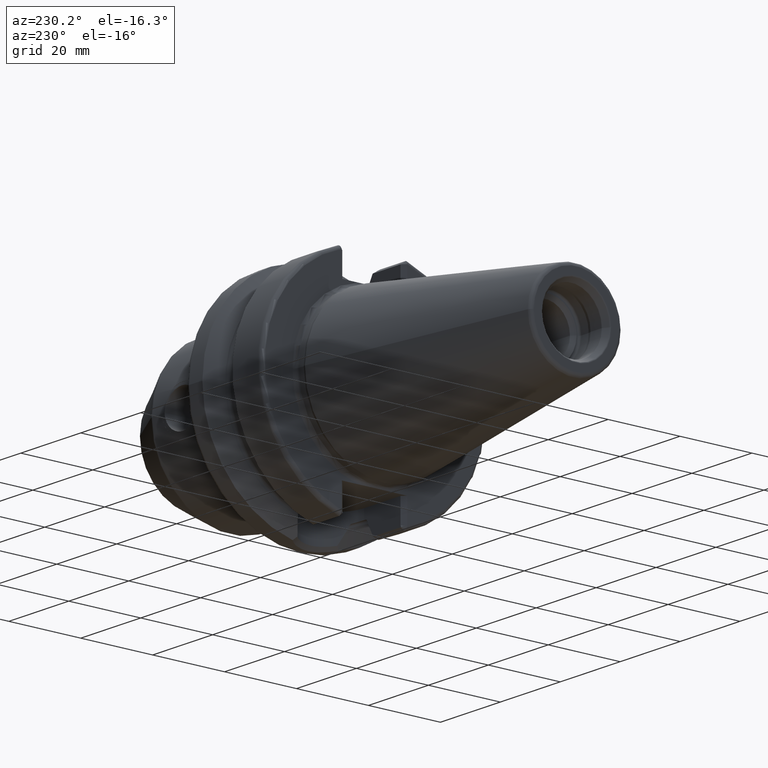
[diagram: clean part render]
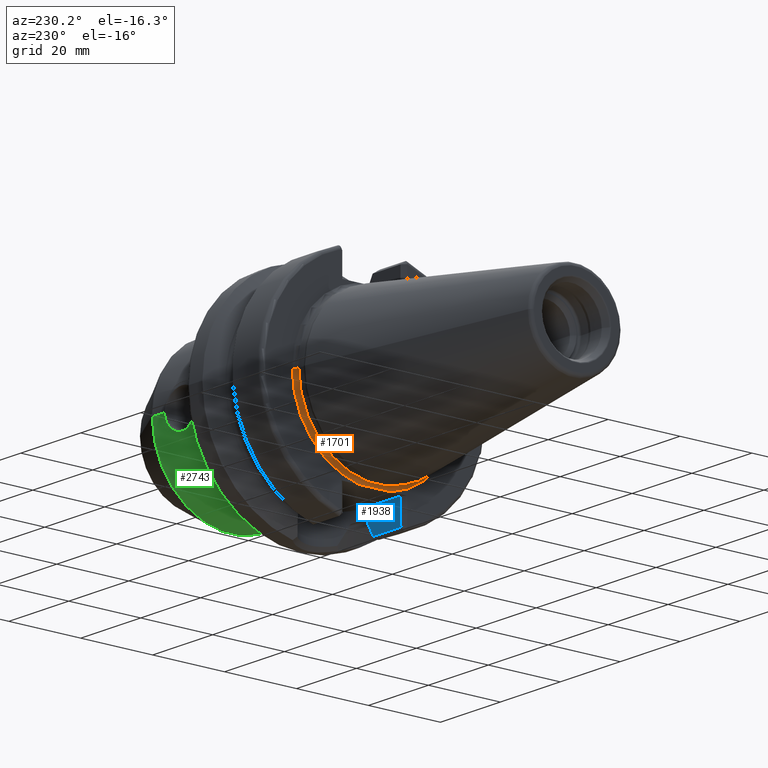
[diagram: same view with three faces highlighted in distinct colors, each labeled with its STEP entity id]
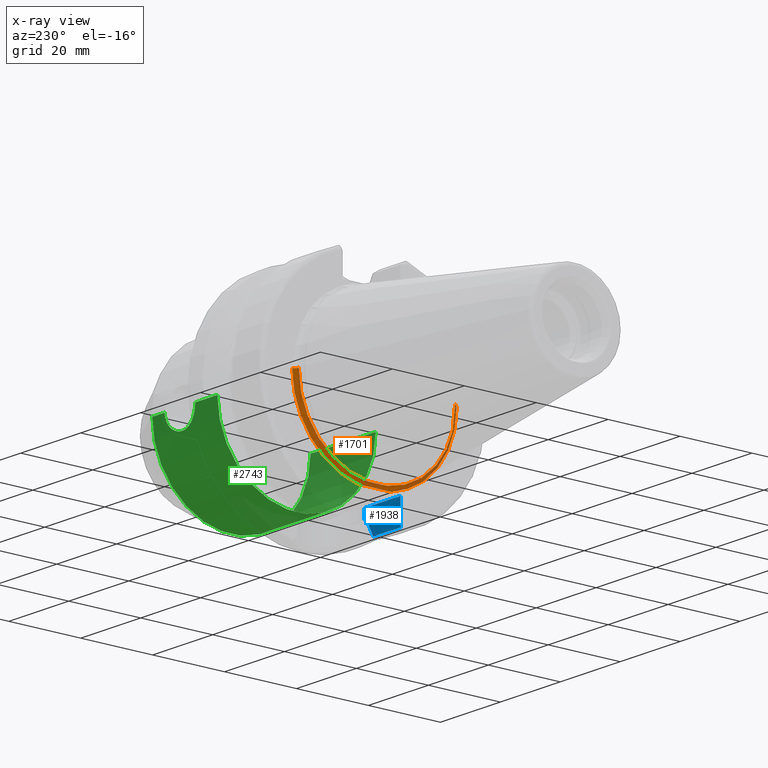
[diagram: x-ray of the same camera — body ghosted, the three highlighted faces saturated]
A machine part, auxiliary view with three faces highlighted in distinct colors.
The next image is the same camera in x-ray (body ghosted, the three faces saturated) — at least one of them is partly hidden behind the body in this view.
Their STEP definitions:

[orange] entity #1701 — the highlighted toroidal blend (fillet) surface has major radius 22.875 mm and minor (blend) radius 1 mm.
#91=CARTESIAN_POINT('',(1.E0,0.E0,0.E0));
#92=DIRECTION('',(-1.E0,0.E0,0.E0));
#93=DIRECTION('',(0.E0,1.E0,0.E0));
#94=AXIS2_PLACEMENT_3D('',#91,#92,#93);
#96=CARTESIAN_POINT('',(2.E0,0.E0,0.E0));
#97=DIRECTION('',(-1.E0,0.E0,0.E0));
#98=DIRECTION('',(0.E0,1.E0,0.E0));
#99=AXIS2_PLACEMENT_3D('',#96,#97,#98);
#101=CARTESIAN_POINT('',(1.E0,2.2875E1,0.E0));
#102=DIRECTION('',(0.E0,0.E0,-1.E0));
#103=DIRECTION('',(1.E0,0.E0,0.E0));
#104=AXIS2_PLACEMENT_3D('',#101,#102,#103);
#106=CARTESIAN_POINT('',(1.E0,-2.2875E1,0.E0));
#107=DIRECTION('',(0.E0,0.E0,1.E0));
#108=DIRECTION('',(1.E0,0.E0,0.E0));
#109=AXIS2_PLACEMENT_3D('',#106,#107,#108);
#111=CARTESIAN_POINT('',(2.E0,0.E0,0.E0));
#112=DIRECTION('',(-1.E0,0.E0,0.E0));
#113=DIRECTION('',(0.E0,-1.918678763451E-1,-9.814207650273E-1));
#114=AXIS2_PLACEMENT_3D('',#111,#112,#113);
#116=CARTESIAN_POINT('',(2.E0,4.388977671395E0,-2.245E1));
#117=CARTESIAN_POINT('',(2.E0,3.970864393606E0,-2.245E1));
#118=CARTESIAN_POINT('',(1.981114905491E0,3.134790252882E0,-2.245E1));
#119=CARTESIAN_POINT('',(1.935909306664E0,1.881114481695E0,-2.245E1));
#120=CARTESIAN_POINT('',(1.903922826087E0,6.271978198695E-1,-2.245E1));
#121=CARTESIAN_POINT('',(1.903921553157E0,-6.271174199701E-1,-2.245E1));
#122=CARTESIAN_POINT('',(1.935907277484E0,-1.881058975901E0,-2.245E1));
#123=CARTESIAN_POINT('',(1.981114329553E0,-3.134769380598E0,-2.245E1));
#124=CARTESIAN_POINT('',(2.E0,-3.970858027266E0,-2.245E1));
#125=CARTESIAN_POINT('',(2.E0,-4.388977671395E0,-2.245E1));
#1366=CARTESIAN_POINT('',(2.E0,2.2875E1,0.E0));
#1367=CARTESIAN_POINT('',(1.E0,2.1875E1,0.E0));
#1368=VERTEX_POINT('',#1366);
#1369=VERTEX_POINT('',#1367);
#1372=CARTESIAN_POINT('',(2.E0,-2.2875E1,0.E0));
#1373=CARTESIAN_POINT('',(1.E0,-2.1875E1,0.E0));
#1374=VERTEX_POINT('',#1372);
#1375=VERTEX_POINT('',#1373);
#1444=CARTESIAN_POINT('',(2.E0,4.388977671395E0,-2.245E1));
#1445=VERTEX_POINT('',#1444);
#1446=CARTESIAN_POINT('',(2.E0,-4.388977671395E0,-2.245E1));
#1447=VERTEX_POINT('',#1446);
#1683=CARTESIAN_POINT('',(1.E0,0.E0,0.E0));
#1684=DIRECTION('',(1.E0,0.E0,0.E0));
#1685=DIRECTION('',(0.E0,-1.E0,0.E0));
#1686=AXIS2_PLACEMENT_3D('',#1683,#1684,#1685);
#1687=TOROIDAL_SURFACE('',#1686,2.2875E1,1.E0);
#1689=ORIENTED_EDGE('',*,*,#1688,.F.);
#1691=ORIENTED_EDGE('',*,*,#1690,.T.);
#1692=ORIENTED_EDGE('',*,*,#1678,.T.);
#1694=ORIENTED_EDGE('',*,*,#1693,.F.);
#1696=ORIENTED_EDGE('',*,*,#1695,.F.);
#1698=ORIENTED_EDGE('',*,*,#1697,.F.);
#1699=EDGE_LOOP('',(#1689,#1691,#1692,#1694,#1696,#1698));
#1700=FACE_OUTER_BOUND('',#1699,.F.);
#1701=ADVANCED_FACE('',(#1700),#1687,.F.);
#95=CIRCLE('',#94,2.1875E1);
#100=CIRCLE('',#99,2.2875E1);
#105=CIRCLE('',#104,1.E0);
#110=CIRCLE('',#109,1.E0);
#115=CIRCLE('',#114,2.2875E1);
#126=B_SPLINE_CURVE_WITH_KNOTS('',3,(#116,#117,#118,#119,#120,#121,#122,#123,
#124,#125),.UNSPECIFIED.,.F.,.F.,(4,1,1,1,1,1,1,4),(0.E0,1.428571428571E-1,
2.857142857143E-1,4.285714285714E-1,5.714285714286E-1,7.142857142857E-1,
8.571428571429E-1,1.E0),.UNSPECIFIED.);
#1678=EDGE_CURVE('',#1369,#1375,#95,.T.);
#1688=EDGE_CURVE('',#1368,#1445,#100,.T.);
#1690=EDGE_CURVE('',#1368,#1369,#105,.T.);
#1693=EDGE_CURVE('',#1374,#1375,#110,.T.);
#1695=EDGE_CURVE('',#1447,#1374,#115,.T.);
#1697=EDGE_CURVE('',#1445,#1447,#126,.T.);

[blue] entity #1938 — the highlighted planar face has unit normal (0, -1, 0).
#293=DIRECTION('',(6.771558882017E-14,-6.771558882017E-14,-1.E0));
#294=VECTOR('',#293,5.246522611263E-2);
#295=CARTESIAN_POINT('',(1.40625E1,-8.095E0,-2.588892813540E1));
#296=LINE('',#295,#294);
#297=CARTESIAN_POINT('',(1.48125E1,-8.095E0,-2.510202382279E1));
#298=CARTESIAN_POINT('',(1.474626583175E1,-8.095E0,-2.510202382279E1));
#299=CARTESIAN_POINT('',(1.462196122728E1,-8.095E0,-2.512019824361E1));
#300=CARTESIAN_POINT('',(1.446015344720E1,-8.095E0,-2.518681119149E1));
#301=CARTESIAN_POINT('',(1.432194250541E1,-8.095E0,-2.528577048685E1));
#302=CARTESIAN_POINT('',(1.421112933741E1,-8.095E0,-2.540882158997E1));
#303=CARTESIAN_POINT('',(1.412599264270E1,-8.095E0,-2.555700431287E1));
#304=CARTESIAN_POINT('',(1.407429746920E1,-8.095E0,-2.571931087657E1));
#305=CARTESIAN_POINT('',(1.40625E1,-8.095E0,-2.583143069402E1));
#306=CARTESIAN_POINT('',(1.40625E1,-8.095E0,-2.588892813540E1));
#308=DIRECTION('',(1.E0,0.E0,0.E0));
#309=VECTOR('',#308,3.425E-1);
#310=CARTESIAN_POINT('',(1.48125E1,-8.095E0,-2.510202382279E1));
#311=LINE('',#310,#309);
#312=DIRECTION('',(-2.257498889307E-6,2.251545840954E-6,-9.999999999949E-1));
#313=VECTOR('',#312,6.649196006545E0);
#314=CARTESIAN_POINT('',(3.E0,-8.095E0,-2.245E1));
#315=LINE('',#314,#313);
#316=CARTESIAN_POINT('',(2.999984989447E0,-8.094985029030E0,-2.909919600651E1));
#317=CARTESIAN_POINT('',(2.978199953432E0,-8.094985029030E0,-2.910621005326E1));
#318=CARTESIAN_POINT('',(2.939061403220E0,-8.095006941660E0,-2.912732028587E1));
#319=CARTESIAN_POINT('',(2.888635871055E0,-8.094998160646E0,-2.918633978618E1));
#320=CARTESIAN_POINT('',(2.863816327920E0,-8.095000415757E0,-2.926079737323E1));
#321=CARTESIAN_POINT('',(2.867841466574E0,-8.095000176327E0,-2.933639768654E1));
#322=CARTESIAN_POINT('',(2.898195259320E0,-8.094998878937E0,-2.939867688526E1));
#323=CARTESIAN_POINT('',(2.947058825082E0,-8.095004307925E0,-2.943767118104E1));
#324=CARTESIAN_POINT('',(2.981463392569E0,-8.094990695550E0,-2.944551523315E1));
#325=CARTESIAN_POINT('',(2.999999944646E0,-8.094990695550E0,-2.944559726605E1));
#327=DIRECTION('',(9.999999999985E-1,-1.020124403797E-6,1.371373608656E-6));
#328=VECTOR('',#327,9.120897357077E0);
#329=CARTESIAN_POINT('',(2.999999944646E0,-8.094990695550E0,-2.944559726605E1));
#330=LINE('',#329,#328);
#331=CARTESIAN_POINT('',(1.40625E1,-8.095E0,-2.594139336151E1));
#332=CARTESIAN_POINT('',(1.385657504808E1,-8.095E0,-2.631502798627E1));
#333=CARTESIAN_POINT('',(1.343816757814E1,-8.095E0,-2.707276272189E1));
#334=CARTESIAN_POINT('',(1.279109429984E1,-8.095E0,-2.824052697941E1));
#335=CARTESIAN_POINT('',(1.234647911565E1,-8.095E0,-2.904036968182E1));
#336=CARTESIAN_POINT('',(1.212089730171E1,-8.095E0,-2.944558475789E1));
#436=DIRECTION('',(0.E0,0.E0,-1.E0));
#437=VECTOR('',#436,2.652023822792E0);
#438=CARTESIAN_POINT('',(1.5155E1,-8.095E0,-2.245E1));
#439=LINE('',#438,#437);
#754=DIRECTION('',(1.E0,0.E0,0.E0));
#755=VECTOR('',#754,1.2155E1);
#756=CARTESIAN_POINT('',(3.E0,-8.095E0,-2.245E1));
#757=LINE('',#756,#755);
#1302=CARTESIAN_POINT('',(1.40625E1,-8.095E0,-2.588892813540E1));
#1304=VERTEX_POINT('',#1302);
#1310=CARTESIAN_POINT('',(1.48125E1,-8.095E0,-2.510202382279E1));
#1312=VERTEX_POINT('',#1310);
#1347=CARTESIAN_POINT('',(1.40625E1,-8.095E0,-2.594139336151E1));
#1349=VERTEX_POINT('',#1347);
#1440=CARTESIAN_POINT('',(1.5155E1,-8.095E0,-2.245E1));
#1442=VERTEX_POINT('',#1440);
#1459=CARTESIAN_POINT('',(1.5155E1,-8.095E0,-2.510202382279E1));
#1460=VERTEX_POINT('',#1459);
#1461=VERTEX_POINT('',#336);
#1505=CARTESIAN_POINT('',(3.E0,-8.095E0,-2.245E1));
#1506=CARTESIAN_POINT('',(2.999984989447E0,-8.094985029030E0,
-2.909919600651E1));
#1507=VERTEX_POINT('',#1505);
#1508=VERTEX_POINT('',#1506);
#1511=CARTESIAN_POINT('',(2.999999944646E0,-8.094990695550E0,
-2.944559726605E1));
#1512=VERTEX_POINT('',#1511);
#1916=CARTESIAN_POINT('',(1.5E0,-8.095E0,-2.245E1));
#1917=DIRECTION('',(0.E0,-1.E0,0.E0));
#1918=DIRECTION('',(1.E0,0.E0,0.E0));
#1919=AXIS2_PLACEMENT_3D('',#1916,#1917,#1918);
#1920=PLANE('',#1919);
#1921=ORIENTED_EDGE('',*,*,#1810,.F.);
#1923=ORIENTED_EDGE('',*,*,#1922,.F.);
#1925=ORIENTED_EDGE('',*,*,#1924,.T.);
#1927=ORIENTED_EDGE('',*,*,#1926,.F.);
#1929=ORIENTED_EDGE('',*,*,#1928,.F.);
#1931=ORIENTED_EDGE('',*,*,#1930,.T.);
#1933=ORIENTED_EDGE('',*,*,#1932,.T.);
#1934=ORIENTED_EDGE('',*,*,#1908,.T.);
#1935=ORIENTED_EDGE('',*,*,#1839,.F.);
#1936=EDGE_LOOP('',(#1921,#1923,#1925,#1927,#1929,#1931,#1933,#1934,#1935));
#1937=FACE_OUTER_BOUND('',#1936,.F.);
#1938=ADVANCED_FACE('',(#1937),#1920,.F.);
#307=B_SPLINE_CURVE_WITH_KNOTS('',3,(#297,#298,#299,#300,#301,#302,#303,#304,
#305,#306),.UNSPECIFIED.,.F.,.F.,(4,1,1,1,1,1,1,4),(0.E0,1.428571428571E-1,
2.857142857143E-1,4.285714285714E-1,5.714285714286E-1,7.142857142857E-1,
8.571428571429E-1,1.E0),.UNSPECIFIED.);
#326=B_SPLINE_CURVE_WITH_KNOTS('',3,(#316,#317,#318,#319,#320,#321,#322,#323,
#324,#325),.UNSPECIFIED.,.F.,.F.,(4,1,1,1,1,1,1,4),(0.E0,1.428571428571E-1,
2.857142857143E-1,4.285714285714E-1,5.714285714286E-1,7.142857142857E-1,
8.571428571429E-1,1.E0),.UNSPECIFIED.);
#337=B_SPLINE_CURVE_WITH_KNOTS('',3,(#331,#332,#333,#334,#335,#336),
.UNSPECIFIED.,.F.,.F.,(4,1,1,4),(0.E0,3.333333333333E-1,6.666666666667E-1,1.E0),
.UNSPECIFIED.);
#1810=EDGE_CURVE('',#1304,#1349,#296,.T.);
#1839=EDGE_CURVE('',#1349,#1461,#337,.T.);
#1908=EDGE_CURVE('',#1512,#1461,#330,.T.);
#1922=EDGE_CURVE('',#1312,#1304,#307,.T.);
#1924=EDGE_CURVE('',#1312,#1460,#311,.T.);
#1926=EDGE_CURVE('',#1442,#1460,#439,.T.);
#1928=EDGE_CURVE('',#1507,#1442,#757,.T.);
#1930=EDGE_CURVE('',#1507,#1508,#315,.T.);
#1932=EDGE_CURVE('',#1508,#1512,#326,.T.);

[green] entity #2743 — the highlighted cylindrical surface (partial cylindrical patch) has radius 22 mm, axis along (1, 0, 0).
#866=CARTESIAN_POINT('',(4.56E1,2.2E1,0.E0));
#885=CARTESIAN_POINT('',(3.54E1,2.2E1,0.E0));
#897=CARTESIAN_POINT('',(4.973205080757E1,0.E0,0.E0));
#898=DIRECTION('',(-1.E0,0.E0,0.E0));
#899=DIRECTION('',(0.E0,1.E0,0.E0));
#900=AXIS2_PLACEMENT_3D('',#897,#898,#899);
#902=DIRECTION('',(-1.E0,0.E0,5.212099837626E-13));
#903=VECTOR('',#902,4.132050807569E0);
#904=CARTESIAN_POINT('',(4.973205080757E1,2.2E1,-2.152319022840E-12));
#905=LINE('',#904,#903);
#906=CARTESIAN_POINT('',(3.54E1,2.2E1,0.E0));
#907=CARTESIAN_POINT('',(3.54E1,2.2E1,-3.157697311555E-1));
#908=CARTESIAN_POINT('',(3.545735693137E1,2.198658998866E1,-9.358152661236E-1));
#909=CARTESIAN_POINT('',(3.571535782912E1,2.192824763813E1,-1.847364664450E0));
#910=CARTESIAN_POINT('',(3.613120816723E1,2.184030962414E1,-2.686415106424E0));
#911=CARTESIAN_POINT('',(3.669639054532E1,2.173319055799E1,-3.440009316718E0));
#912=CARTESIAN_POINT('',(3.738136668974E1,2.162253612951E1,-4.071476812335E0));
#913=CARTESIAN_POINT('',(3.818182216464E1,2.152050153018E1,-4.575047668005E0));
#914=CARTESIAN_POINT('',(3.905648900506E1,2.144282795437E1,-4.922228705756E0));
#915=CARTESIAN_POINT('',(4.000144818087E1,2.139945050362E1,-5.105385618271E0));
#916=CARTESIAN_POINT('',(4.094870789508E1,2.139836015111E1,-5.109895545711E0));
#917=CARTESIAN_POINT('',(4.189324506011E1,2.143947842455E1,-4.936607883804E0));
#918=CARTESIAN_POINT('',(4.277317867060E1,2.151557550138E1,-4.597962668934E0));
#919=CARTESIAN_POINT('',(4.358551441638E1,2.161764069181E1,-4.097352078510E0));
#920=CARTESIAN_POINT('',(4.428177229922E1,2.172928073288E1,-3.464828780453E0));
#921=CARTESIAN_POINT('',(4.485656489625E1,2.183780775275E1,-2.707132856539E0));
#922=CARTESIAN_POINT('',(4.527899045758E1,2.192698930165E1,-1.863207182780E0));
#923=CARTESIAN_POINT('',(4.554157183384E1,2.198633688928E1,-9.443701476190E-1));
#924=CARTESIAN_POINT('',(4.56E1,2.2E1,-3.187815244413E-1));
#925=CARTESIAN_POINT('',(4.56E1,2.2E1,0.E0));
#927=DIRECTION('',(-1.E0,0.E0,3.149507681682E-13));
#928=VECTOR('',#927,7.4E0);
#929=CARTESIAN_POINT('',(3.54E1,2.2E1,0.E0));
#930=LINE('',#929,#928);
#931=CARTESIAN_POINT('',(2.8E1,0.E0,0.E0));
#932=DIRECTION('',(1.E0,0.E0,0.E0));
#933=DIRECTION('',(0.E0,-1.E0,0.E0));
#934=AXIS2_PLACEMENT_3D('',#931,#932,#933);
#936=DIRECTION('',(-1.E0,0.E0,-2.061264973660E-13));
#937=VECTOR('',#936,2.173205080757E1);
#938=CARTESIAN_POINT('',(4.973205080757E1,-2.2E1,2.146756384003E-12));
#939=LINE('',#938,#937);
#1525=VERTEX_POINT('',#866);
#1526=VERTEX_POINT('',#885);
#1533=CARTESIAN_POINT('',(2.8E1,-2.2E1,0.E0));
#1534=CARTESIAN_POINT('',(2.8E1,2.2E1,0.E0));
#1535=VERTEX_POINT('',#1533);
#1536=VERTEX_POINT('',#1534);
#1537=CARTESIAN_POINT('',(4.973205080757E1,2.2E1,0.E0));
#1538=CARTESIAN_POINT('',(4.973205080757E1,-2.2E1,0.E0));
#1539=VERTEX_POINT('',#1537);
#1540=VERTEX_POINT('',#1538);
#2729=CARTESIAN_POINT('',(2.52E1,0.E0,0.E0));
#2730=DIRECTION('',(1.E0,0.E0,0.E0));
#2731=DIRECTION('',(0.E0,-1.E0,0.E0));
#2732=AXIS2_PLACEMENT_3D('',#2729,#2730,#2731);
#2733=CYLINDRICAL_SURFACE('',#2732,2.2E1);
#2734=ORIENTED_EDGE('',*,*,#2720,.F.);
#2735=ORIENTED_EDGE('',*,*,#2695,.T.);
#2737=ORIENTED_EDGE('',*,*,#2736,.F.);
#2738=ORIENTED_EDGE('',*,*,#2691,.T.);
#2739=ORIENTED_EDGE('',*,*,#2661,.F.);
#2740=ORIENTED_EDGE('',*,*,#2688,.F.);
#2741=EDGE_LOOP('',(#2734,#2735,#2737,#2738,#2739,#2740));
#2742=FACE_OUTER_BOUND('',#2741,.F.);
#2743=ADVANCED_FACE('',(#2742),#2733,.T.);
#901=CIRCLE('',#900,2.2E1);
#926=B_SPLINE_CURVE_WITH_KNOTS('',3,(#906,#907,#908,#909,#910,#911,#912,#913,
#914,#915,#916,#917,#918,#919,#920,#921,#922,#923,#924,#925),.UNSPECIFIED.,.F.,
.F.,(4,1,1,1,1,1,1,1,1,1,1,1,1,1,1,1,1,4),(0.E0,5.882352941176E-2,
1.176470588235E-1,1.764705882353E-1,2.352941176471E-1,2.941176470588E-1,
3.529411764706E-1,4.117647058824E-1,4.705882352941E-1,5.294117647059E-1,
5.882352941176E-1,6.470588235294E-1,7.058823529412E-1,7.647058823529E-1,
8.235294117647E-1,8.823529411765E-1,9.411764705882E-1,1.E0),.UNSPECIFIED.);
#935=CIRCLE('',#934,2.2E1);
#2661=EDGE_CURVE('',#1535,#1536,#935,.T.);
#2688=EDGE_CURVE('',#1540,#1535,#939,.T.);
#2691=EDGE_CURVE('',#1526,#1536,#930,.T.);
#2695=EDGE_CURVE('',#1539,#1525,#905,.T.);
#2720=EDGE_CURVE('',#1539,#1540,#901,.T.);
#2736=EDGE_CURVE('',#1526,#1525,#926,.T.);